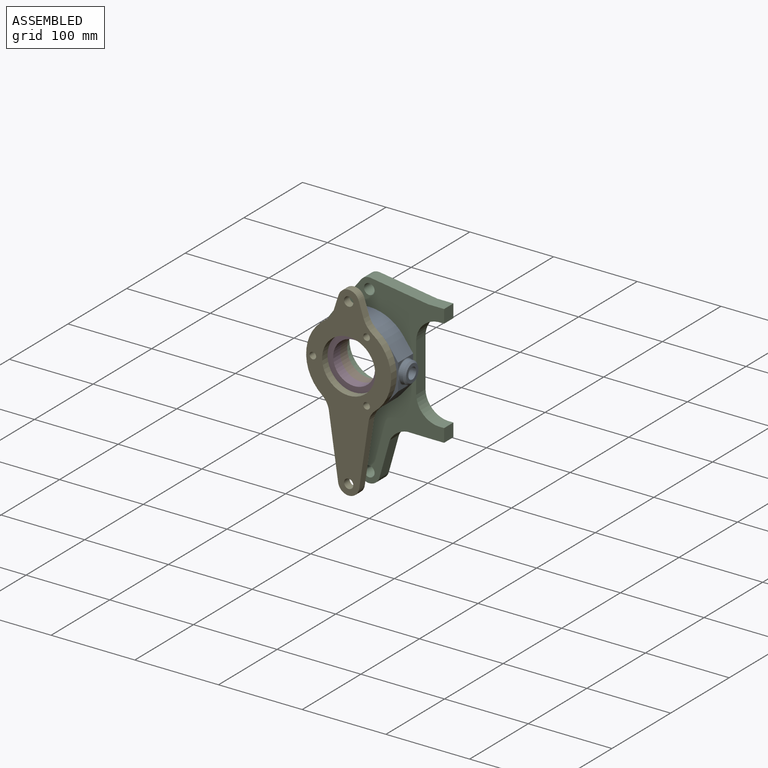
[diagram: assembled view]
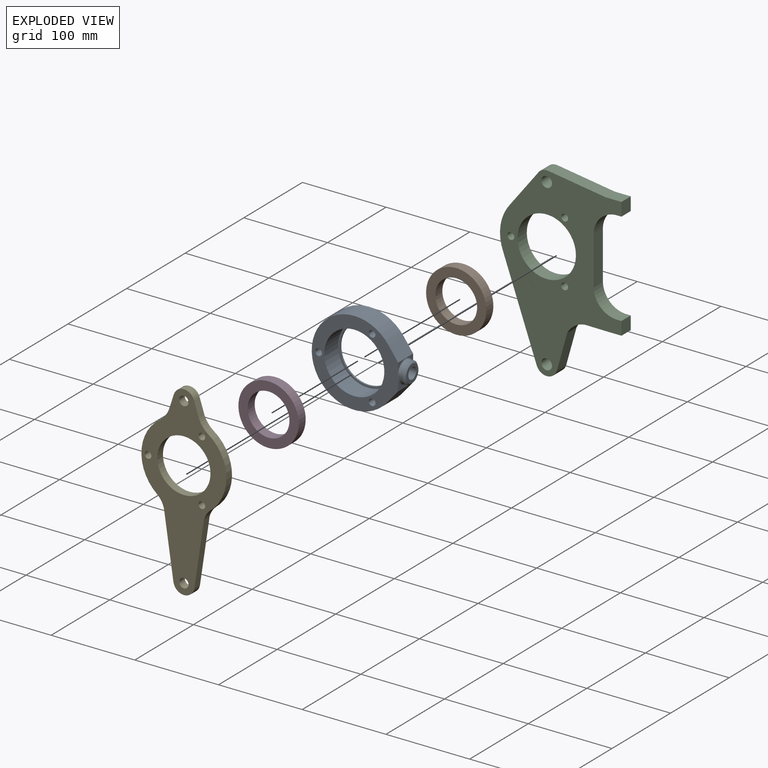
[diagram: exploded view]
GUIDED TOUR — MATED ASSEMBLY (Onshape document af3f4730a27134600b8b0b92, AutoMate assembly af3f4730a27134600b8b0b92_98c0748dc677245c911822a7_81586cc658d9b1ffa762aafd_default)

This assembly has 5 components, labeled P0..P4 below (a component is one placed occurrence of a part; the same part can appear more than once), held together by 4 mates. A mate is a constraint between two components; its type names the relative motion it leaves free:
  FASTENED — locks the two components together rigidly (no relative motion).
Axis/direction vectors are unit vectors and 'through' points are millimeter coordinates, both in the assembly's world frame.

MATES
  1. FASTENED "Fastened 1": P2 <-> P0, direction (0.000, -1.000, 0.000) through (-41.90, -40.09, -47.22) mm
  2. FASTENED "Fastened 4": P3 <-> P1, direction (0.000, 1.000, 0.000) through (-41.90, -54.00, -47.22) mm
  3. FASTENED "Fastened 2": P0 <-> P4, direction (0.000, -1.000, 0.000) through (-41.90, -65.75, -47.22) mm
  4. FASTENED "Fastened 3": P1 <-> P0, direction (0.000, 1.000, 0.000) through (-41.90, -42.00, -47.22) mm

ASSEMBLY ORDER
  1. P0 — the base component [order heuristic]
  2. P1 — core [order heuristic]
  3. P3 — core [order heuristic]
  4. P4 [order verified]
  5. P2 [order verified]
Order-tag legend:
  [order verified] — this step's position reverses a verified removal order: the component was checked to insert without passing through the ones already placed.
  [order heuristic] — the first 3 components form the assembly's core: parts whose collision-free extraction could not be verified, listed in mate-graph order.

Of the 5 components, 4 carry the full construction recipe — the FeatureScript program that regenerates the part's solid from scratch; the rest are supplied as boundary geometry only.
Each toured component is shown spotlighted twice — in the assembled view, then in the exploded view, where a leader line traces a displaced component back to its assembled socket (saturated green if recipe-attached, orange if geometry-only; every other component desaturated gray) — followed by its recipe or geometry summary and the mates that hold it.
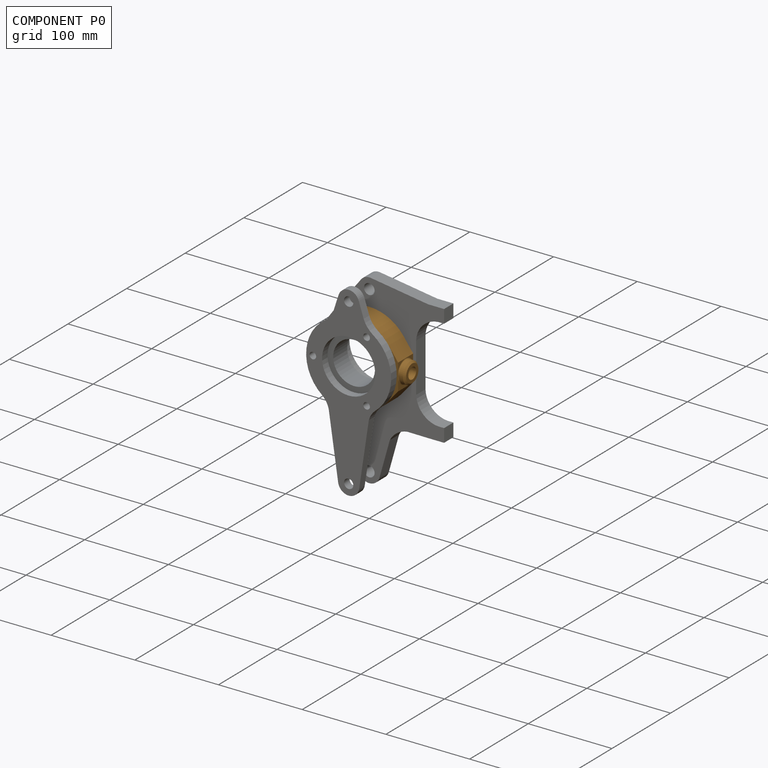
[diagram: component P0 — assembled]
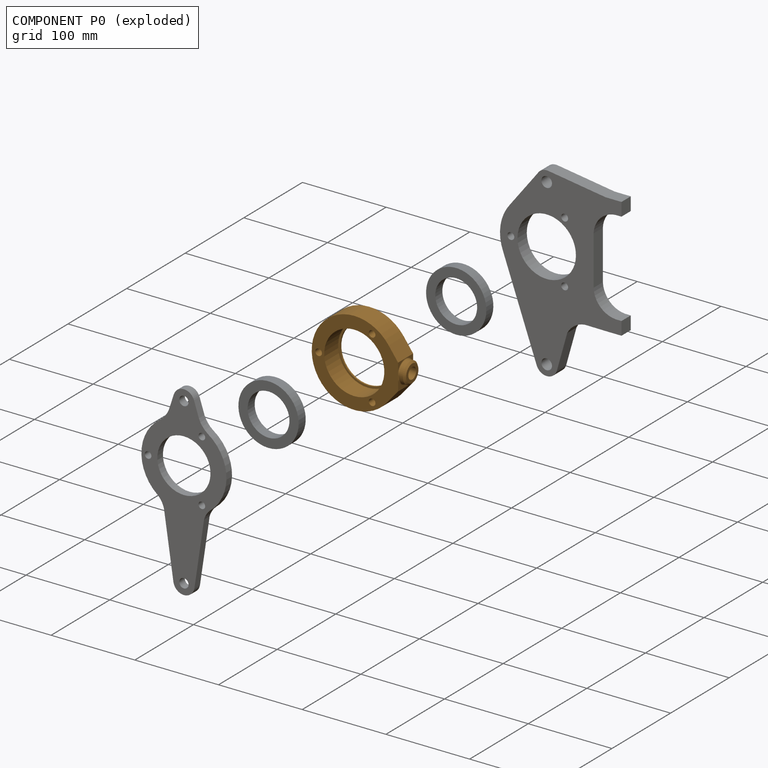
[diagram: component P0 — exploded]
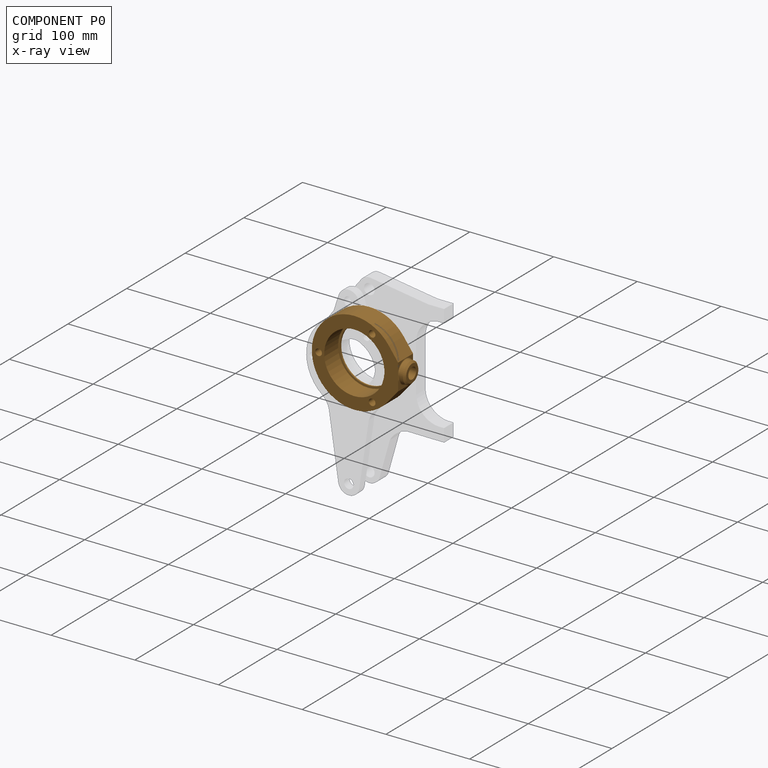
[diagram: component P0 — x-ray view]
COMPONENT P0 — geometry summary (no construction recipe available for this part):
  bounding box: 111.2 x 101.7 x 29.7 mm
  B-rep topology: 1 solid, 21 faces, 98 edges
  volume: 104532 mm^3 (31% of its bounding box)
Held by: FASTENED mate "Fastened 1" to P2; FASTENED mate "Fastened 2" to P4; FASTENED mate "Fastened 3" to P1.
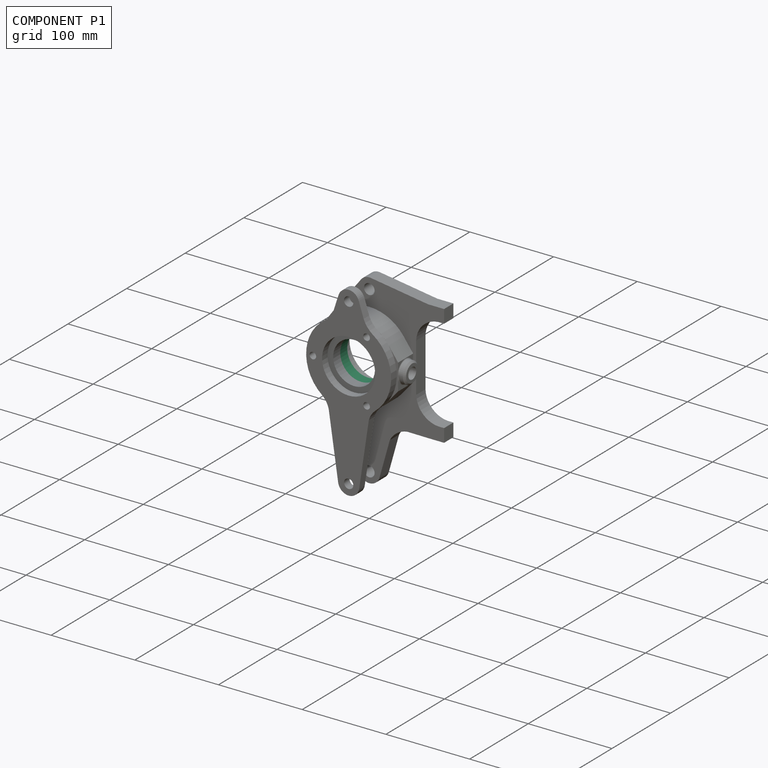
[diagram: component P1 — assembled]
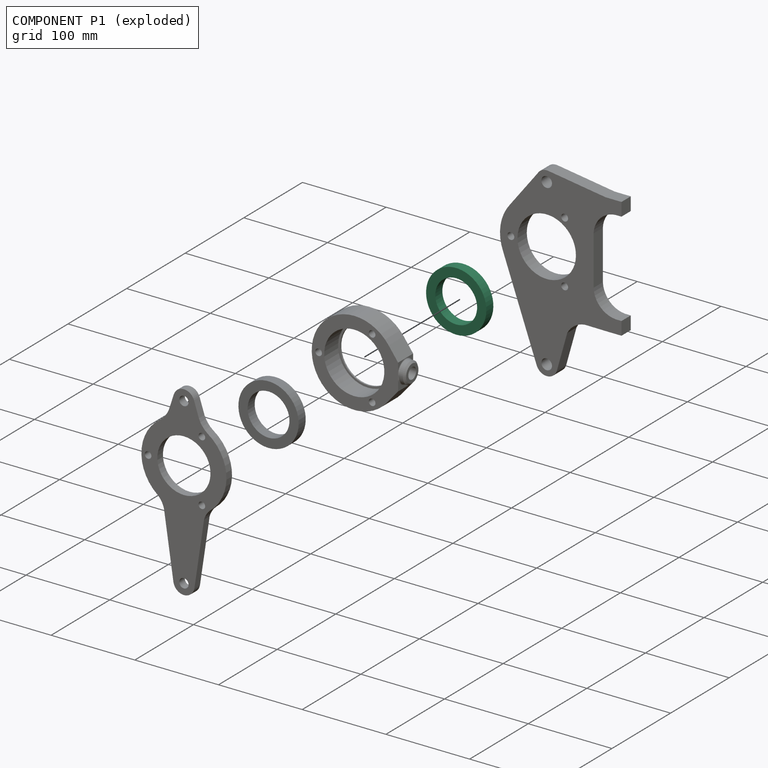
[diagram: component P1 — exploded]
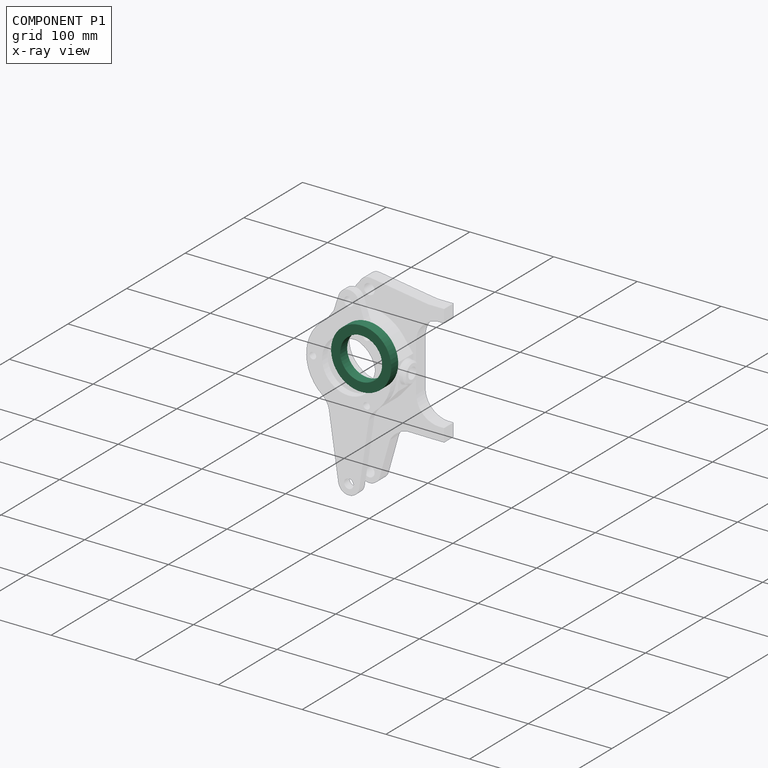
[diagram: component P1 — x-ray view]
COMPONENT P1 — recipe-attached (CADFS 00308085, mesh-verified: the recipe's output STEP matches this component's geometry to below the mesh-comparison resolution (tessellation chordal tolerance ~0.154 mm)).
Held by: FASTENED mate "Fastened 4" to P3; FASTENED mate "Fastened 3" to P0.
Construction recipe (FeatureScript — the CAD program that rebuilds this solid; sketch coordinates are in the units given by the * unit suffixes, e.g. mm):

FeatureScript 1511;
import(path : "onshape/std/geometry.fs", version : "1511.0");
import(path : "onshape/std/common.fs", version : "1511.0");
const mm = millimeter;
const VERTEX = EntityType.VERTEX;
const EDGE = EntityType.EDGE;
const FACE = EntityType.FACE;
const BODY = EntityType.BODY;
function v(x, y){return vector(x, y);}
function OD(order){return orderDisambiguation(order);}
function OSD(set){return originalSetDisambiguation(set);}
function TD(topology){return topologyDisambiguation(topology);}
function TDD(query){return trueDependencyDisambiguation(query);}
function sQuery(a, b, c) {return sketchEntityQuery(a, b, c);}

annotation { "Feature Type Name" : "Feature", "Feature Type Description" : "" }
export const myFeature = defineFeature(function(context is Context, id is Id, definition is map)
    precondition{}
    {
        {
            var Q0;
            Q0=qCreatedBy(makeId("Front.planeOp"),FACE);
            var sketch = newSketch(context, id + "F0", { "sketchPlane" : qUnion([Q0])});
            skCircle(sketch, "E0", {"center": v(0, 0) * mm, "radius": 36 * mm});
            skCircle(sketch, "E1", {"center": v(0, 0) * mm, "radius": 25 * mm});
            skSolve(sketch);
        }
        {
            var Q0;
            Q0 = qSketchRegion(id + "F0", true);
            extrude(context, id + "F1", {"entities" : qUnion([Q0]), "depth" : 12 * mm, "offsetDistance" : 25.4 * mm});
        }
    });
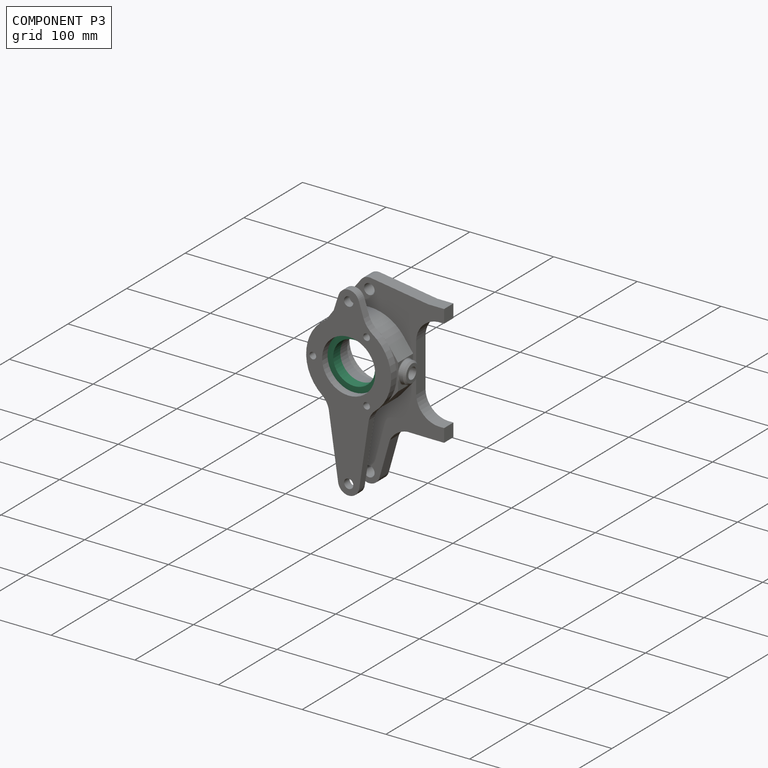
[diagram: component P3 — assembled]
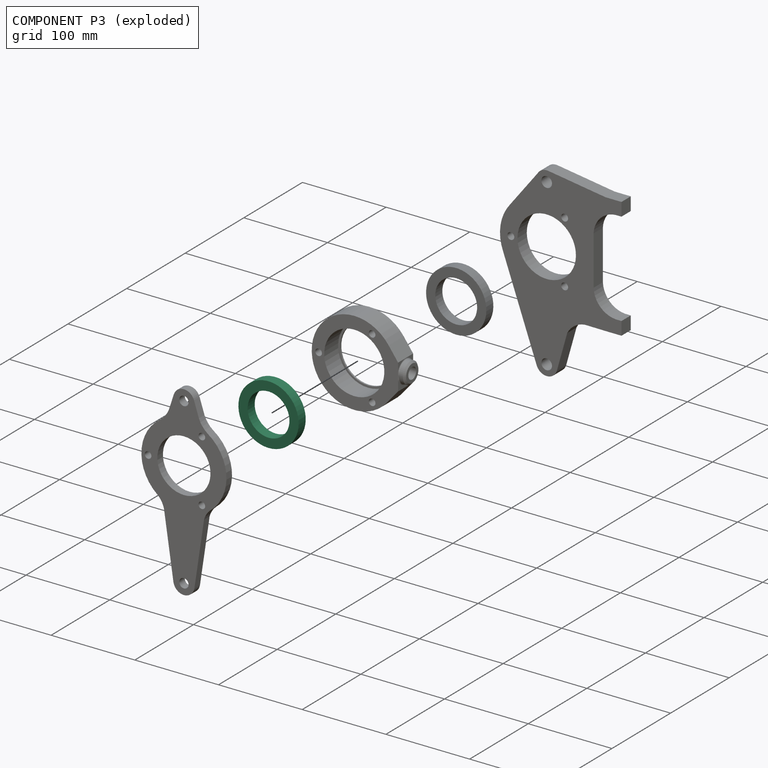
[diagram: component P3 — exploded]
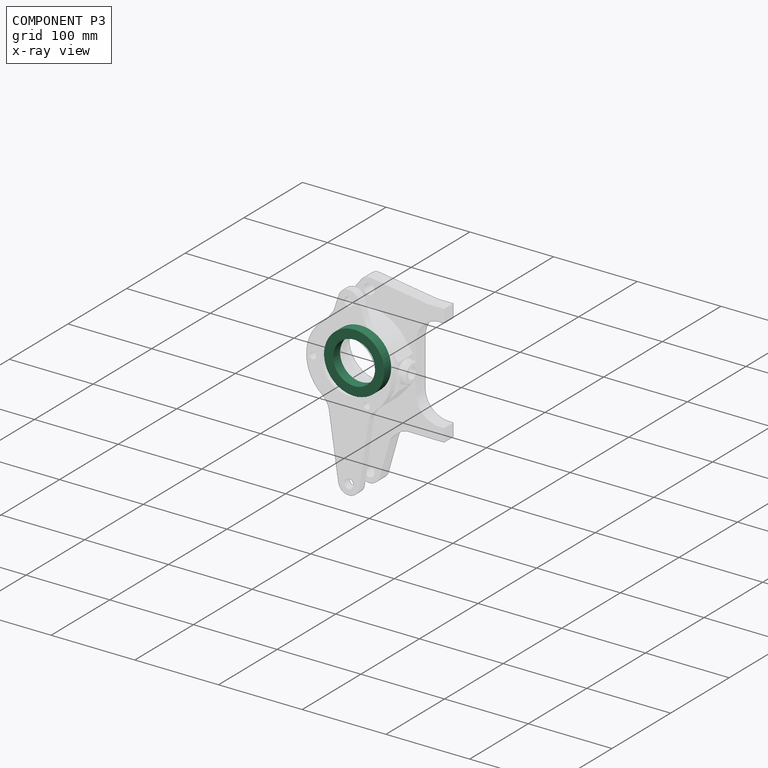
[diagram: component P3 — x-ray view]
COMPONENT P3 — same part as P1 (CADFS 00308085); its construction recipe is shown at P1.
Held by: FASTENED mate "Fastened 4" to P1.
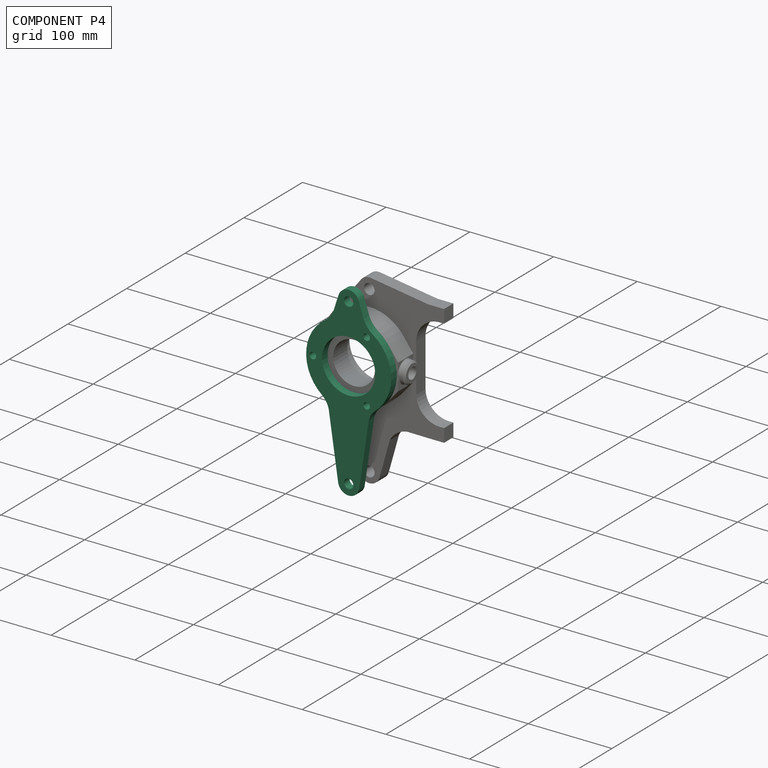
[diagram: component P4 — assembled]
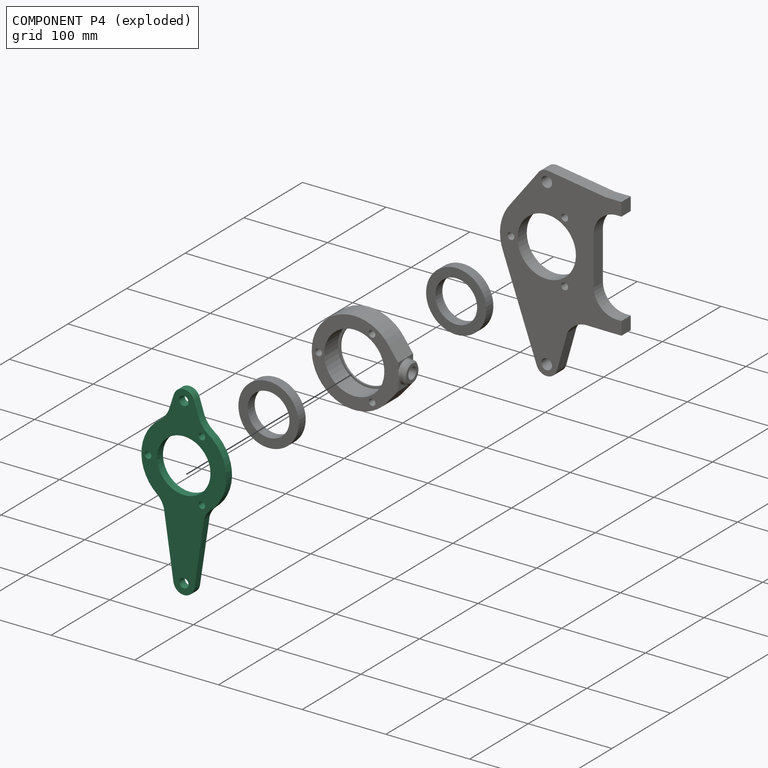
[diagram: component P4 — exploded]
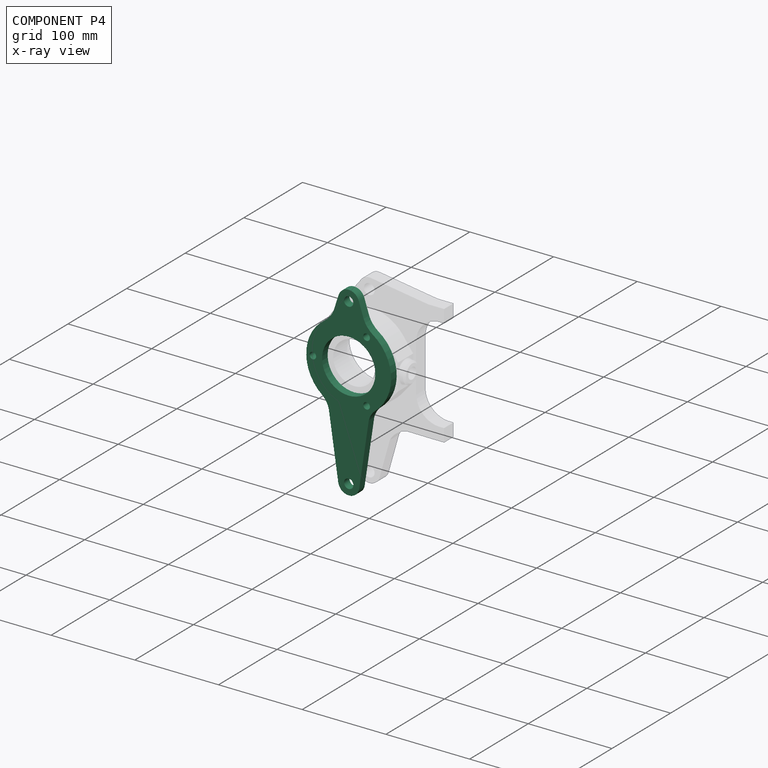
[diagram: component P4 — x-ray view]
COMPONENT P4 — recipe-attached (CADFS 00308081, mesh-verified: the recipe's output STEP matches this component's geometry to below the mesh-comparison resolution (tessellation chordal tolerance ~0.367 mm)).
Held by: FASTENED mate "Fastened 2" to P0.
Construction recipe (FeatureScript — the CAD program that rebuilds this solid; sketch coordinates are in the units given by the * unit suffixes, e.g. mm):

FeatureScript 1511;
import(path : "onshape/std/geometry.fs", version : "1511.0");
import(path : "onshape/std/common.fs", version : "1511.0");
const mm = millimeter;
const VERTEX = EntityType.VERTEX;
const EDGE = EntityType.EDGE;
const FACE = EntityType.FACE;
const BODY = EntityType.BODY;
function v(x, y){return vector(x, y);}
function OD(order){return orderDisambiguation(order);}
function OSD(set){return originalSetDisambiguation(set);}
function TD(topology){return topologyDisambiguation(topology);}
function TDD(query){return trueDependencyDisambiguation(query);}
function sQuery(a, b, c) {return sketchEntityQuery(a, b, c);}

annotation { "Feature Type Name" : "Feature", "Feature Type Description" : "" }
export const myFeature = defineFeature(function(context is Context, id is Id, definition is map)
    precondition{}
    {
        {
            var Q0;
            Q0=qCreatedBy(makeId("Front.planeOp"),FACE);
            var sketch = newSketch(context, id + "F0", { "sketchPlane" : qUnion([Q0])});
            skArc(sketch, "E0", {"start": v(31.44, -39.9) * mm, "mid": v(50.76, 2) * mm, "end": v(28.19, 42.26) * mm});
            skCircle(sketch, "E1", {"center": v(0, 0) * mm, "radius": 31.75 * mm});
            skLineSegment(sketch, "E2", {"start": v(0, 117.02) * mm, "end": v(0, -168.81) * mm, "construction": true});
            skLineSegment(sketch, "E3", {"start": v(-75.94, 0) * mm, "end": v(123.61, 0) * mm, "construction": true});
            skCircle(sketch, "E4", {"center": v(0, 69.85) * mm, "radius": 5.56 * mm});
            skCircle(sketch, "E5", {"center": v(0, -127) * mm, "radius": 5.56 * mm});
            skArc(sketch, "E6", {"start": v(12.08, 73.76) * mm, "mid": v(0, 82.55) * mm, "end": v(-12.08, 73.77) * mm});
            skArc(sketch, "E7", {"start": v(-12.56, -128.88) * mm, "mid": v(0, -139.7) * mm, "end": v(12.56, -128.86) * mm});
            skCircle(sketch, "E8", {"center": v(-21.42, 37.1) * mm, "radius": 3.97 * mm});
            skCircle(sketch, "E9", {"center": v(-21.42, -37.1) * mm, "radius": 3.97 * mm});
            skLineSegment(sketch, "E10", {"start": v(-24.08, -51.75) * mm, "end": v(-12.56, -128.88) * mm});
            skLineSegment(sketch, "E11", {"start": v(23.81, -52.8) * mm, "end": v(12.56, -128.86) * mm});
            skArc(sketch, "E12", {"start": v(33.1, -38.54) * mm, "mid": v(26.16, -46.6) * mm, "end": v(23.22, -56.83) * mm});
            skArc(sketch, "E13.MirrorCS", {"start": v(-33.1, -38.54) * mm, "mid": v(-26.16, -46.6) * mm, "end": v(-23.22, -56.83) * mm});
            skLineSegment(sketch, "E14", {"start": v(-17.88, 55.9) * mm, "end": v(-12.08, 73.77) * mm});
            skLineSegment(sketch, "E15", {"start": v(17.78, 56.17) * mm, "end": v(12.08, 73.76) * mm});
            skArc(sketch, "E16", {"start": v(16.98, 58.65) * mm, "mid": v(21.81, 48.7) * mm, "end": v(29.86, 41.1) * mm});
            skArc(sketch, "E17.MirrorCS", {"start": v(-16.98, 58.65) * mm, "mid": v(-21.81, 48.7) * mm, "end": v(-29.86, 41.1) * mm});
            skArc(sketch, "E18.trimOffspring", {"start": v(-28.19, 42.26) * mm, "mid": v(-50.76, 2) * mm, "end": v(-31.44, -39.9) * mm});
            skCircle(sketch, "E19", {"center": v(42.85, 0) * mm, "radius": 3.97 * mm});
            skSolve(sketch);
        }
        {
            var Q0;
            Q0 = qSketchRegion(id + "F0", true);
            extrude(context, id + "F1", {"entities" : qUnion([Q0]), "depth" : 9.52 * mm, "offsetDistance" : 25.4 * mm});
        }
    });
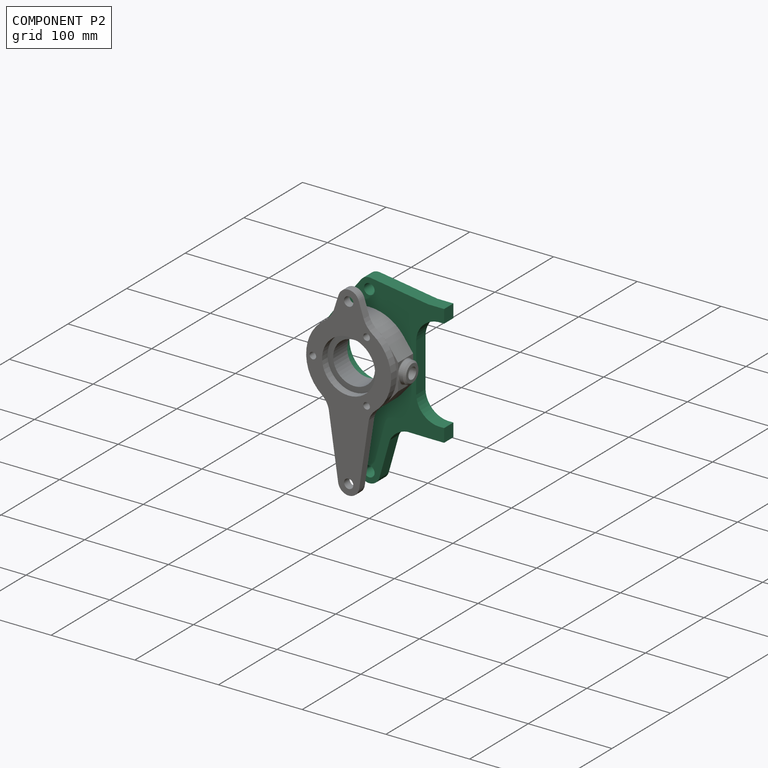
[diagram: component P2 — assembled]
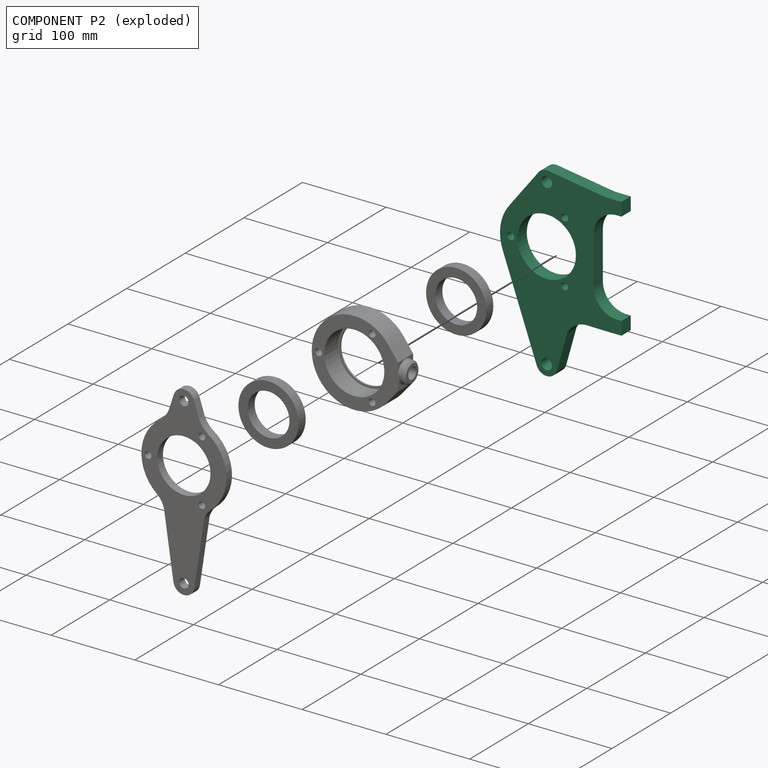
[diagram: component P2 — exploded]
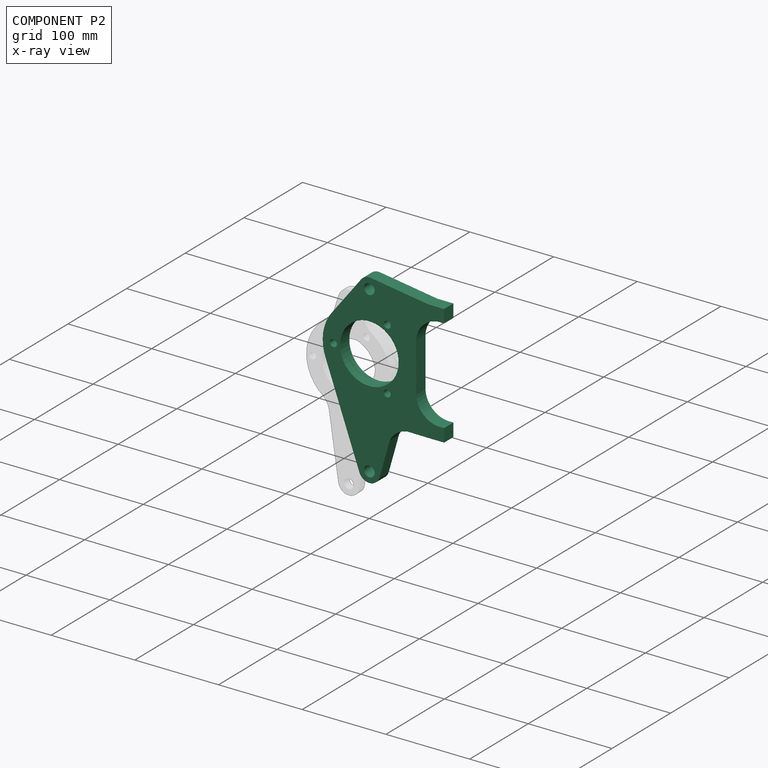
[diagram: component P2 — x-ray view]
COMPONENT P2 — recipe-attached (CADFS 00308080, mesh-verified: the recipe's output STEP matches this component's geometry to below the mesh-comparison resolution (tessellation chordal tolerance ~0.399 mm)).
Held by: FASTENED mate "Fastened 1" to P0.
Construction recipe (FeatureScript — the CAD program that rebuilds this solid; sketch coordinates are in the units given by the * unit suffixes, e.g. mm):

FeatureScript 1511;
import(path : "onshape/std/geometry.fs", version : "1511.0");
import(path : "onshape/std/common.fs", version : "1511.0");
const mm = millimeter;
const VERTEX = EntityType.VERTEX;
const EDGE = EntityType.EDGE;
const FACE = EntityType.FACE;
const BODY = EntityType.BODY;
function v(x, y){return vector(x, y);}
function OD(order){return orderDisambiguation(order);}
function OSD(set){return originalSetDisambiguation(set);}
function TD(topology){return topologyDisambiguation(topology);}
function TDD(query){return trueDependencyDisambiguation(query);}
function sQuery(a, b, c) {return sketchEntityQuery(a, b, c);}

annotation { "Feature Type Name" : "Feature", "Feature Type Description" : "" }
export const myFeature = defineFeature(function(context is Context, id is Id, definition is map)
    precondition{}
    {
        {
            var Q0;
            Q0=qCreatedBy(makeId("Front.planeOp"),FACE);
            var sketch = newSketch(context, id + "F0", { "sketchPlane" : qUnion([Q0])});
            skArc(sketch, "E0", {"start": v(-32.34, -13.18) * mm, "mid": v(0, -34.93) * mm, "end": v(32.34, -13.18) * mm});
            skCircle(sketch, "E1", {"center": v(-37.1, -21.42) * mm, "radius": 4.13 * mm});
            skCircle(sketch, "E2.MirrorC", {"center": v(37.1, -21.42) * mm, "radius": 4.13 * mm});
            skPoint(sketch, "E3.orphan", {"position": v(0, -34.93) * mm});
            skLineSegment(sketch, "E4.0", {"start": v(-29.37, -56) * mm, "end": v(29.37, -56) * mm});
            skLineSegment(sketch, "E5.0", {"start": v(-72.23, -89.34) * mm, "end": v(-56.36, -89.34) * mm});
            skLineSegment(sketch, "E6", {"start": v(0, -34.93) * mm, "end": v(0, -56) * mm});
            skLineSegment(sketch, "E7.0", {"start": v(72.23, -70.3) * mm, "end": v(72.23, -89.34) * mm});
            skLineSegment(sketch, "E8.0", {"start": v(-72.23, -70.3) * mm, "end": v(-72.23, -89.34) * mm});
            skLineSegment(sketch, "E9.0", {"start": v(56.36, -82.25) * mm, "end": v(56.36, -89.34) * mm});
            skLineSegment(sketch, "E10.0", {"start": v(-56.36, -82.25) * mm, "end": v(-56.36, -89.34) * mm});
            skArc(sketch, "E11", {"start": v(56.36, -82.25) * mm, "mid": v(47.02, -63.17) * mm, "end": v(27.03, -56) * mm});
            skPoint(sketch, "E11.first.point", {"position": v(56.36, -86.17) * mm});
            skPoint(sketch, "E11.second.point", {"position": v(27.03, -56) * mm});
            skLineSegment(sketch, "E12.trimOffspring", {"start": v(55.95, -89.34) * mm, "end": v(72.23, -89.34) * mm});
            skArc(sketch, "E13.MirrorCS", {"start": v(-56.36, -86.17) * mm, "mid": v(-48.44, -64.53) * mm, "end": v(-27.03, -56) * mm});
            skPoint(sketch, "E14.orphan", {"position": v(27.58, -21.42) * mm});
            skPoint(sketch, "E15.orphan", {"position": v(-27.58, -21.42) * mm});
            skLineSegment(sketch, "E16", {"start": v(0, -34.93) * mm, "end": v(0, 66.57) * mm, "construction": true});
            skCircle(sketch, "E17", {"center": v(0, 42.85) * mm, "radius": 4.13 * mm});
            skCircle(sketch, "E18", {"center": v(0, 0) * mm, "radius": 34.93 * mm});
            skLineSegment(sketch, "E19", {"start": v(-126.46, 0) * mm, "end": v(146.74, 0) * mm, "construction": true});
            skLineSegment(sketch, "E20.0", {"start": v(127, -34.93) * mm, "end": v(127, 66.57) * mm});
            skArc(sketch, "E21", {"start": v(-76.26, 10.97) * mm, "mid": v(-81.3, 5.5) * mm, "end": v(-82.41, -1.87) * mm});
            skArc(sketch, "E22", {"start": v(130.43, -12.23) * mm, "mid": v(139.7, -0.37) * mm, "end": v(131.14, 12) * mm});
            skLineSegment(sketch, "E23", {"start": v(-72.23, -70.3) * mm, "end": v(-82.41, -1.87) * mm});
            skLineSegment(sketch, "E24", {"start": v(-76.26, 10.97) * mm, "end": v(-33.59, 44.02) * mm});
            skLineSegment(sketch, "E25", {"start": v(131.14, 12) * mm, "end": v(18.6, 52.19) * mm});
            skLineSegment(sketch, "E26", {"start": v(130.43, -12.23) * mm, "end": v(86.61, -24.53) * mm});
            skCircle(sketch, "E27", {"center": v(-69.85, 0) * mm, "radius": 6.35 * mm});
            skCircle(sketch, "E28", {"center": v(127, 0) * mm, "radius": 6.35 * mm});
            skArc(sketch, "E29.trimOffspring", {"start": v(18.6, 52.19) * mm, "mid": v(-8.6, 55.19) * mm, "end": v(-33.59, 44.02) * mm});
            skArc(sketch, "E30", {"start": v(71.88, -28.67) * mm, "mid": v(71.67, -28.73) * mm, "end": v(71.46, -28.79) * mm});
            skPoint(sketch, "E30.second.point", {"position": v(71.88, -28.67) * mm});
            skLineSegment(sketch, "E31", {"start": v(72.23, -70.3) * mm, "end": v(72.02, -45.68) * mm});
            skArc(sketch, "E32", {"start": v(96.66, -21.71) * mm, "mid": v(77.93, -31.52) * mm, "end": v(72.07, -51.82) * mm});
            skPoint(sketch, "E32.first.point", {"position": v(72.02, -45.68) * mm});
            skPoint(sketch, "E32.second.point", {"position": v(86.61, -24.53) * mm});
            skPoint(sketch, "E32.third.point", {"position": v(81.5, -27.9) * mm});
            skLineSegment(sketch, "E33.trimOffspring", {"start": v(71.88, -28.67) * mm, "end": v(71.46, -28.79) * mm});
            skSolve(sketch);
        }
        {
            var Q0;
            Q0 = qSketchRegion(id + "F0", true);
            extrude(context, id + "F1", {"entities" : qUnion([Q0]), "depth" : 15.88 * mm, "offsetDistance" : 25.4 * mm});
        }
        {
            var Q0;
            Q0=makeQuery(id+"F1.opExtrude","CAP_FACE",FACE,{"disambiguationData":[OSD([sQuery(id+"F0.wireOp",EDGE,"E0"),sQuery(id+"F0.wireOp",EDGE,"E1"),sQuery(id+"F0.wireOp",EDGE,"E2.MirrorC"),sQuery(id+"F0.wireOp",EDGE,"E4.0"),sQuery(id+"F0.wireOp",EDGE,"E5.0"),sQuery(id+"F0.wireOp",EDGE,"E7.0"),sQuery(id+"F0.wireOp",EDGE,"E8.0"),sQuery(id+"F0.wireOp",EDGE,"E9.0"),sQuery(id+"F0.wireOp",EDGE,"E10.0"),sQuery(id+"F0.wireOp",EDGE,"E11"),sQuery(id+"F0.wireOp",EDGE,"E12.trimOffspring"),sQuery(id+"F0.wireOp",EDGE,"E13.MirrorCS"),sQuery(id+"F0.wireOp",EDGE,"E17"),sQuery(id+"F0.wireOp",EDGE,"E18"),sQuery(id+"F0.wireOp",EDGE,"E21"),sQuery(id+"F0.wireOp",EDGE,"E22"),sQuery(id+"F0.wireOp",EDGE,"E23"),sQuery(id+"F0.wireOp",EDGE,"E24"),sQuery(id+"F0.wireOp",EDGE,"E25"),sQuery(id+"F0.wireOp",EDGE,"E26"),sQuery(id+"F0.wireOp",EDGE,"E27"),sQuery(id+"F0.wireOp",EDGE,"E28"),sQuery(id+"F0.wireOp",EDGE,"E29.trimOffspring"),sQuery(id+"F0.wireOp",EDGE,"E30"),sQuery(id+"F0.wireOp",EDGE,"E31"),sQuery(id+"F0.wireOp",EDGE,"E32"),sQuery(id+"F0.wireOp",EDGE,"E33.trimOffspring")])],"isStart":false});
            var sketch = newSketch(context, id + "F2", { "sketchPlane" : qUnion([Q0])});
            skCircle(sketch, "E34.0", {"center": v(-37.1, -21.42) * mm, "radius": 4.13 * mm});
            skCircle(sketch, "E34.1", {"center": v(37.1, -21.42) * mm, "radius": 4.13 * mm});
            skCircle(sketch, "E34.2", {"center": v(0, 42.85) * mm, "radius": 4.13 * mm});
            skSolve(sketch);
        }
        {
            var Q0;
            Q0=sQuery(id+"F2.wireOp",VERTEX,"E34.0.center");
            var Q1;
            Q1=sQuery(id+"F2.wireOp",VERTEX,"E34.2.center");
            var Q2;
            Q2=sQuery(id+"F2.wireOp",VERTEX,"E34.1.center");
            var Q3;
            Q3=makeQuery(id+"F1.opExtrude","SWEPT_BODY",BODY,{"disambiguationData":[OSD([sQuery(id+"F0.wireOp",EDGE,"E0"),sQuery(id+"F0.wireOp",EDGE,"E1"),sQuery(id+"F0.wireOp",EDGE,"E2.MirrorC"),sQuery(id+"F0.wireOp",EDGE,"E4.0"),sQuery(id+"F0.wireOp",EDGE,"E5.0"),sQuery(id+"F0.wireOp",EDGE,"E7.0"),sQuery(id+"F0.wireOp",EDGE,"E8.0"),sQuery(id+"F0.wireOp",EDGE,"E9.0"),sQuery(id+"F0.wireOp",EDGE,"E10.0"),sQuery(id+"F0.wireOp",EDGE,"E11"),sQuery(id+"F0.wireOp",EDGE,"E12.trimOffspring"),sQuery(id+"F0.wireOp",EDGE,"E13.MirrorCS"),sQuery(id+"F0.wireOp",EDGE,"E17"),sQuery(id+"F0.wireOp",EDGE,"E18"),sQuery(id+"F0.wireOp",EDGE,"E21"),sQuery(id+"F0.wireOp",EDGE,"E22"),sQuery(id+"F0.wireOp",EDGE,"E23"),sQuery(id+"F0.wireOp",EDGE,"E24"),sQuery(id+"F0.wireOp",EDGE,"E25"),sQuery(id+"F0.wireOp",EDGE,"E26"),sQuery(id+"F0.wireOp",EDGE,"E27"),sQuery(id+"F0.wireOp",EDGE,"E28"),sQuery(id+"F0.wireOp",EDGE,"E29.trimOffspring"),sQuery(id+"F0.wireOp",EDGE,"E30"),sQuery(id+"F0.wireOp",EDGE,"E31"),sQuery(id+"F0.wireOp",EDGE,"E32"),sQuery(id+"F0.wireOp",EDGE,"E33.trimOffspring")])]});
            hole(context, id + "F3", {"style" : HoleStyle.C_SINK, "endStyle" : HoleEndStyle.THROUGH, "holeDiameter" : 8.25 * mm, "cSinkDiameter" : 15.24 * mm, "cSinkAngle" : 90 * degree, "majorDiameter" : 6.35 * mm, "isTappedThrough" : true, "tappedDepth" : 12.7 * mm, "tapClearance" : 3, "startFromSketch" : true, "locations" : qUnion([Q0, Q1, Q2]), "scope" : qUnion([Q3])});
        }
    });
PROVENANCE & LICENSES
Assembly (occurrences, transforms, mates, per-part STEP geometry): AutoMate dataset, Zenodo record 7776208, CC0.
Construction recipes: CADFS (HuggingFace VladPyatov/CADFS, CC-BY-4.0, layered over the ABC dataset), FeatureScript reconstruction programs keyed by ABC model id.
Join: ABC meta listings map ABC model id -> Onshape documentId; within a shared document, parts are matched by geometric signature (bounding-box dims + volume at 0.1% relative tolerance, exact B-rep face/solid counts).
Verification: 4 of this assembly's 5 components carry a recipe attachment, and every attachment is mesh-verified: the CADFS STEP and the AutoMate member STEP were compared as meshes in their shared local frame (symmetric sampled-point-to-mesh distance); worst across the 4 attachments: below the mesh-comparison resolution (tessellation chordal tolerance ~0.399 mm) on a 266 mm part.
Renders: orthographic iso camera (az 35 / el 25); the floor grid conveys scale (grid pitch printed in each image; no ruler). In the exploded view each component is displaced by its stored offset vector: the offsets alone carry the explosion direction (mate normal/axis signs are not orientation cues and do not encode it), and separation distances are assigned per mate-chain, not proportionally to assembly-order depth.
